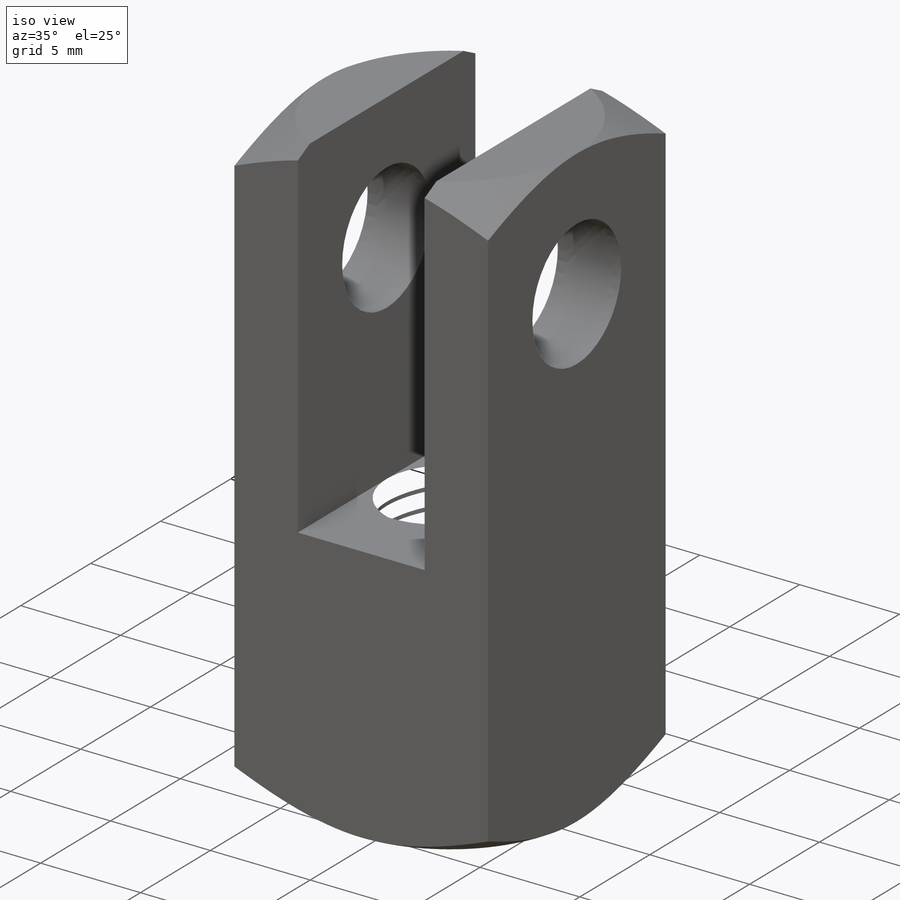
[diagram: iso view]
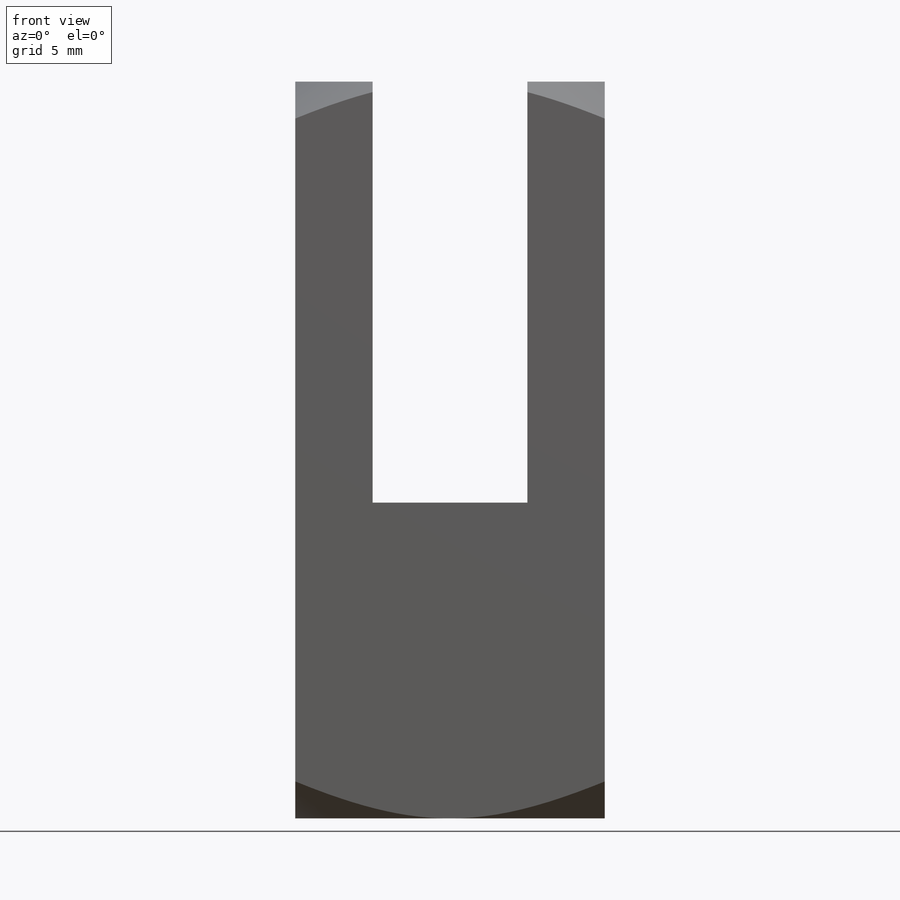
[diagram: front view]
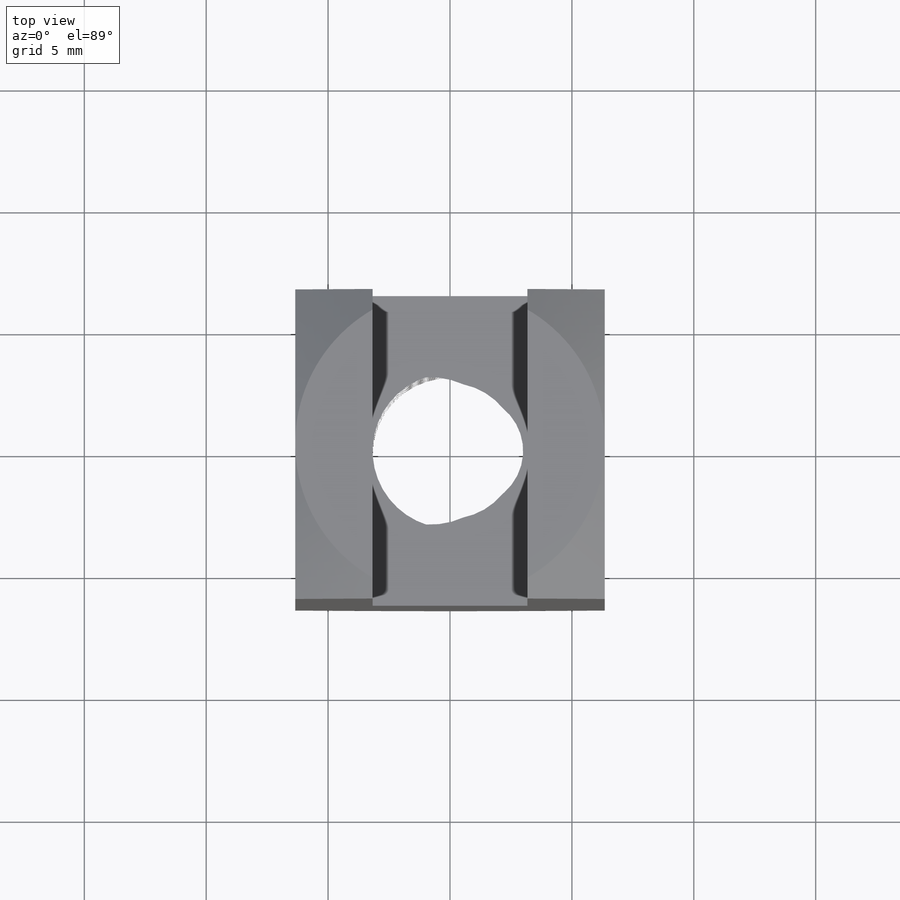
[diagram: top view]
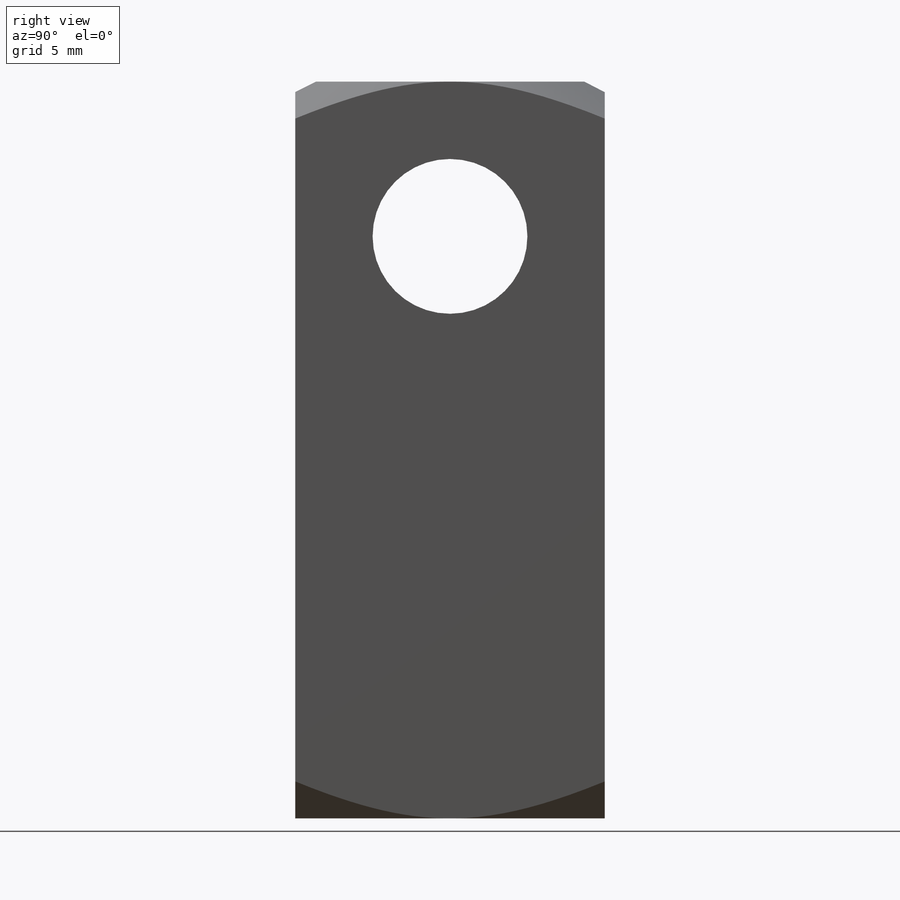
[diagram: right view]
SOLIDWORKS PART (.sldprt)
format: sldprt  version: not decoded by parser v0  size: 1,337,344 bytes
history: native  units: mm
features: sketch x16, cut_extrude x5, cut_revolve x5, extrude x3, revolve x3, pattern_linear x2, boolean_combine x2, plane x2, material x1, mirror x1 (+13 scaffold rows collapsed)
feature tree (53):
  scaffold x13  (default folders/planes/origin — collapsed)
  material  "Material <not specified>"
  sketch  "Sketch1"  dims[Height=30.226mm Width=12.7mm]
  extrude  "Extrude1"  Depth=12.7mm
  sketch  "Sketch2"  dims[Slot Width=6.35mm Slot Height=17.272mm]
  cut_extrude  "Cut-Extrude1"  [1 undecoded]
  sketch  "Sketch9"  dims[Pin Dist=6.35mm Pin Dia=6.35mm]
  cut_revolve  "Cut-Revolve3"  Angle=360deg
  sketch  "Sketch4"
  cut_extrude  "Cut-Extrude3"  [1 undecoded]
  sketch  "Sketch5"
  cut_extrude  "Cut-Extrude4"  [1 undecoded]
  sketch  "Sketch6"  dims[Thread Dia=6.35mm]
  revolve  "Revolve1"  Angle=360deg
  sketch  "Sketch7"  dims[c1.D1=~0.113393mm c1.D2=~0.226786mm c1.Thread Pitch=~0.907143mm c1.D4=~0.654476mm c2.D4=60.0deg c2.D3=~0.907143mm]
  cut_revolve  "Cut-Revolve1"  Angle=360deg
  pattern_linear  "LPattern1"  Count1=2 Count2=14 Spacing1=0.907143mm Spacing2=0.907143mm
  sketch  "Sketch8"  dims[c1.D1=6.35mm c2.D1=30.0deg]
  cut_revolve  "Cut-Revolve2"  Angle=360deg
  boolean_combine  "Combine1"
  plane  "Plane1"  Offset=1.27mm
  sketch  "Sketch10"  dims[D1=12.7mm]
  extrude  "Extrude2"  Depth=4.064mm Nut Height=4.064mm
  sketch  "Sketch11"  dims[c1.D1=~1.538678mm c2.D1=20.0deg]
  cut_revolve  "Cut-Revolve4"  Angle=360deg
  sketch  "Sketch12"
  revolve  "Revolve2"  Angle=360deg
  sketch  "Sketch13"  dims[c1.D1=~0.113393mm c1.D2=~0.226786mm c1.D3=~0.907143mm c1.D4=~0.653946mm c2.D4=60.0deg c2.D5=~0.907143mm]
  cut_revolve  "Cut-Revolve5"  Angle=360deg
  pattern_linear  "LPattern3"  Count1=2 Count2=4 Spacing1=0.907143mm Spacing2=0.907143mm
  sketch  "Sketch14"
  cut_extrude  "Cut-Extrude5"  [1 undecoded]
  sketch  "Sketch15"
  cut_extrude  "Cut-Extrude6"  [1 undecoded]
  boolean_combine  "Combine2"
  sketch  "Sketch16"  dims[c1.Pin Length=21.59mm c1.Pin Head Dia=9.525mm c1.D2=0.0254mm c1.D3=0.127mm c1.D4=1.5875mm c1.D1=17.526mm c2.D3=0.2032mm c2.D4=0.508mm c2.D5=0.762mm c2.D6=0.2032mm c3.D6=2.6416mm c4.D6=45.0deg]
  revolve  "Revolve3"  Angle=360deg
  plane  "Plane2"
  sketch  "Sketch17"  dims[c1.D2=5.08mm c1.D6=0.762mm c1.D1=~2.227592mm c2.D1=60.0deg c2.D3=2.6416mm c3.D3=45.0deg c3.D4=~3.592102mm c4.D4=25.0deg c4.D5=~3.592102mm c5.D5=25.0deg]
  extrude  "Extrude3"  Depth=0.381mm
  mirror  "Mirror1"
decode coverage: 24 of 37 modeling features carry decoded parameters
note: ~ marks probable driven/reference dimensions
note: 5 parameter values undecoded
summary: no parameter record found for 5 features
note: suppression state not decoded; provenance and decode notes live in map.json
